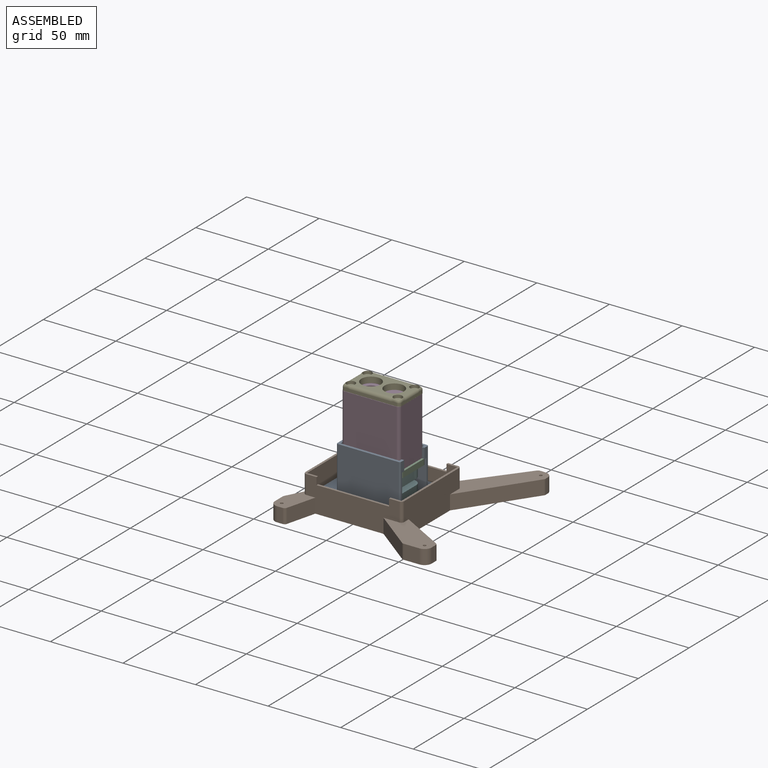
[diagram: assembled view]
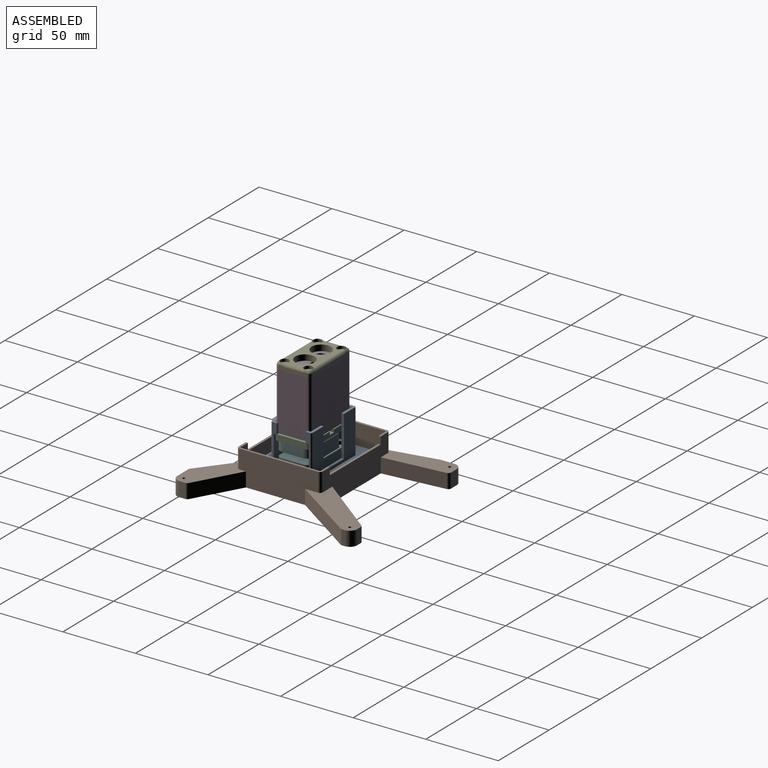
[diagram: assembled view, second angle]
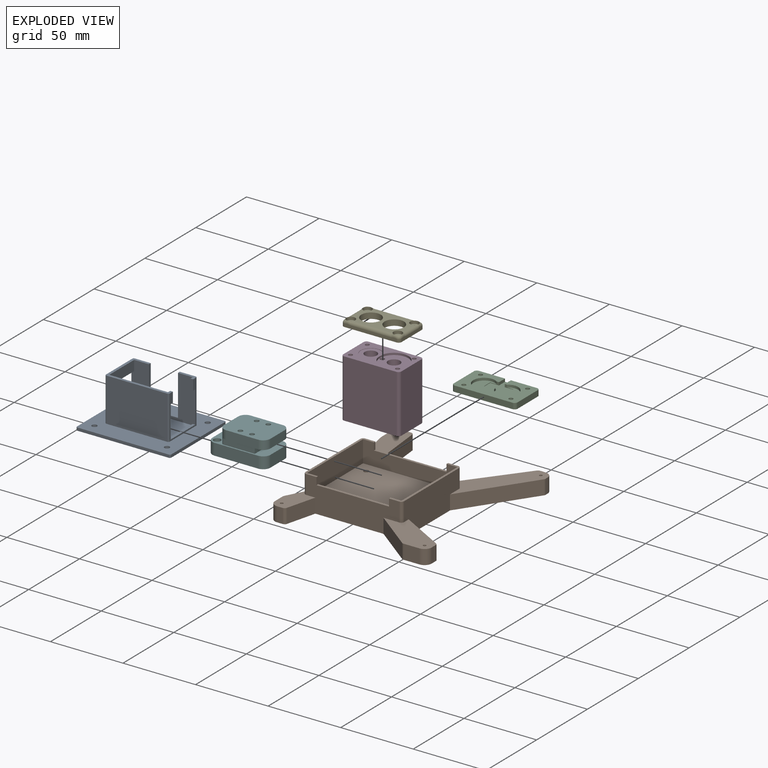
[diagram: exploded view]
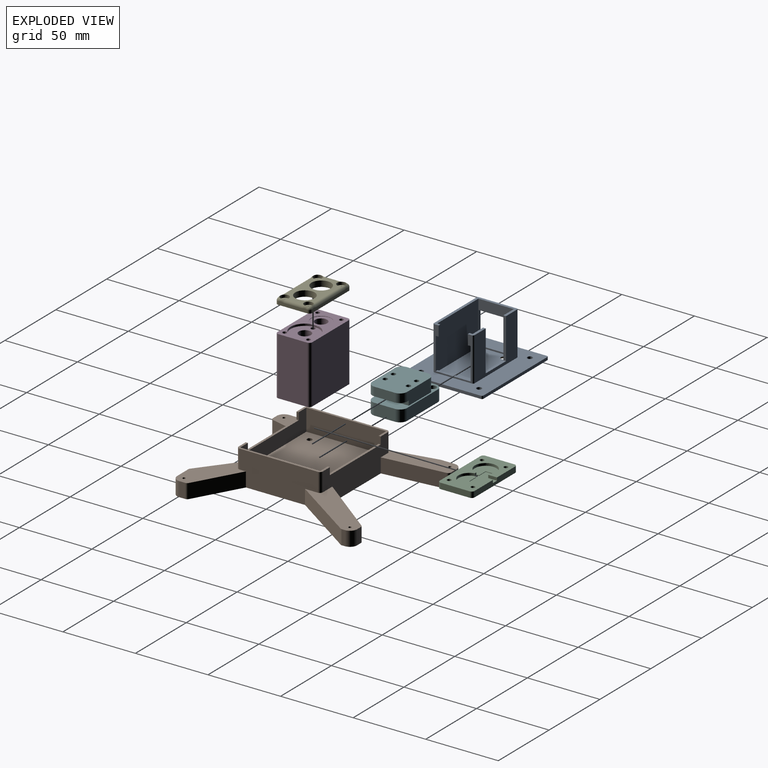
[diagram: exploded view, second angle]
FCSTD DOCUMENT  (FreeCAD 1.0R39319 (Git))
Label: BoltTaskAssembly_TypeB_V1
License: All rights reserved
LicenseURL: https://en.wikipedia.org/wiki/All_rights_reserved
objects: Sketcher::SketchObject×41, PartDesign::Hole×16, PartDesign::Fillet×14, PartDesign::Pocket×13, PartDesign::Pad×12, PartDesign::Mirrored×12, PartDesign::Body×7, App::Link×6, Assembly::JointGroup×1, Part::FeaturePython×1, Assembly::AssemblyObject×1
note: 279 computed .brp shape members not serialized (recipe doc carries the construction recipe); baked Part::Feature solids carry a one-line shape summary decoded from their .brp

FEATURE [Sketcher::SketchObject] Sketch
  ArcFitTolerance = 1e-06
  AttachmentSupport = -> [XY_Plane]
  FullyConstrained = true
  MakeInternals = false
  MapMode = 5
  sketch-geometry (4):
    g0: LineSegment StartX=-12 StartY=16 StartZ=0 EndX=-12 EndY=-16 EndZ=0
    g1: LineSegment StartX=-12 StartY=-16 StartZ=0 EndX=12 EndY=-16 EndZ=0
    g2: LineSegment StartX=12 StartY=-16 StartZ=0 EndX=12 EndY=16 EndZ=0
    g3: LineSegment StartX=12 StartY=16 StartZ=0 EndX=-12 EndY=16 EndZ=0
  constraints (12):
    c: Coincident(g0,g1)
    c: Coincident(g1,g2)
    c: Coincident(g2,g3)
    c: Coincident(g3,g0)
    c: Vertical(g0)
    c: Vertical(g2)
    c: Horizontal(g1)
    c: Horizontal(g3)
    c: Distance(g0,g2) = 24
    c: Distance(g1,g3) = 32
    c: Distance(g-1,g3) = 16
    c: Distance(g-1,g0) = 12
FEATURE [PartDesign::Pad] Pad
  Direction = (0,0,1)
  Length = 8
  Length2 = 10
  Midplane = true
  Profile = -> Sketch
  ReferenceAxis = -> Sketch [N_Axis]
  Refine = true
  Suppressed = false
  Type = 0
FEATURE [PartDesign::Fillet] Fillet
  Base = -> Pad [Edge2,Edge5,Edge8,Edge1]
  BaseFeature = -> Pad
  Radius = 4
  Refine = true
  SupportTransform = false
  Suppressed = false
  UseAllEdges = false
FEATURE [Sketcher::SketchObject] Sketch001
  ArcFitTolerance = 1e-06
  AttachmentSupport = -> [Fillet]
  FullyConstrained = true
  MakeInternals = false
  MapMode = 5
  Placement = pos=(0,0,4) rot=(0,0,1;0rad)
  sketch-geometry (1):
    g0: Circle CenterX=-8 CenterY=-4 CenterZ=0 NormalX=0 NormalY=0 NormalZ=1 AngleXU=0 Radius=2.5
  constraints (3):
    c: Diameter(g0) = 5
    c: DistanceY(g0,g-1) = 4
    c: DistanceX(g0,g-1) = 8
FEATURE [PartDesign::Hole] Hole
  BaseFeature = -> Fillet
  CustomThreadClearance = 0
  Depth = 25
  DepthType = 0
  Diameter = 5
  DrillForDepth = false
  DrillPoint = 1
  DrillPointAngle = 118
  HoleCutCountersinkAngle = 90
  HoleCutCustomValues = false
  HoleCutDepth = 0
  HoleCutDiameter = 6.1
  HoleCutType = 0
  ModelThread = false
  Profile = -> Sketch001
  Refine = true
  Suppressed = false
  Tapered = false
  TaperedAngle = 90
  ThreadClass = 0
  ThreadDepth = 25
  ThreadDepthType = 0
  ThreadDirection = 0
  ThreadFit = 0
  ThreadSize = 0
  ThreadType = 0
  Threaded = false
  UseCustomThreadClearance = false
FEATURE [PartDesign::Mirrored] Mirrored
  BaseFeature = -> Hole
  MirrorPlane = -> Sketch001 [V_Axis]
  Originals = -> [Hole]
  Refine = true
  Suppressed = false
  TransformMode = 0
FEATURE [Sketcher::SketchObject] Sketch002
  ArcFitTolerance = 1e-06
  AttachmentSupport = -> [Mirrored]
  FullyConstrained = true
  MakeInternals = false
  MapMode = 5
  Placement = pos=(0,0,4) rot=(0,0,1;0rad)
  sketch-geometry (4):
    g0: LineSegment StartX=-7 StartY=10 StartZ=0 EndX=7 EndY=10 EndZ=0
    g1: LineSegment StartX=7 StartY=10 StartZ=0 EndX=7 EndY=16 EndZ=0
    g2: LineSegment StartX=7 StartY=16 StartZ=0 EndX=-7 EndY=16 EndZ=0
    g3: LineSegment StartX=-7 StartY=16 StartZ=0 EndX=-7 EndY=10 EndZ=0
  constraints (12):
    c: Coincident(g0,g1)
    c: Coincident(g1,g2)
    c: Coincident(g2,g3)
    c: Coincident(g3,g0)
    c: Horizontal(g0)
    c: Horizontal(g2)
    c: Vertical(g1)
    c: Vertical(g3)
    c: Distance(g1,g3) = 14
    c: Distance(g0,g2) = 6
    c: Distance(g-2,g3) = 7
    c: Distance(g-1,g2) = 16
FEATURE [PartDesign::Pocket] Pocket
  BaseFeature = -> Mirrored
  Direction = (0,0,-1)
  Length = 5.2
  Length2 = 5
  Profile = -> Sketch002
  ReferenceAxis = -> Sketch002 [N_Axis]
  Refine = true
  Suppressed = false
  Type = 0
FEATURE [Sketcher::SketchObject] Sketch003
  ArcFitTolerance = 1e-06
  AttachmentSupport = -> [Pocket]
  FullyConstrained = true
  MakeInternals = false
  MapMode = 5
  Placement = pos=(0,0,-1.2) rot=(0,0,1;0rad)
  sketch-geometry (8):
    g0: LineSegment StartX=7 StartY=10 StartZ=0 EndX=-7 EndY=10 EndZ=0
    g1: LineSegment StartX=-7 StartY=10 StartZ=0 EndX=-7 EndY=19.5 EndZ=0
    g2: LineSegment StartX=-7 StartY=19.5 StartZ=0 EndX=-3 EndY=19.5 EndZ=0
    g3: LineSegment StartX=-3 StartY=19.5 StartZ=0 EndX=-3 EndY=12 EndZ=0
    g4: LineSegment StartX=-3 StartY=12 StartZ=0 EndX=3 EndY=12 EndZ=0
    g5: LineSegment StartX=3 StartY=12 StartZ=0 EndX=3 EndY=19.5 EndZ=0
    g6: LineSegment StartX=3 StartY=19.5 StartZ=0 EndX=7 EndY=19.5 EndZ=0
    g7: LineSegment StartX=7 StartY=19.5 StartZ=0 EndX=7 EndY=10 EndZ=0
  constraints (24):
    c: Horizontal(g0)
    c: Coincident(g0,g1)
    c: Vertical(g1)
    c: Coincident(g1,g2)
    c: Horizontal(g2)
    c: Coincident(g2,g3)
    c: Vertical(g3)
    c: Coincident(g3,g4)
    c: Horizontal(g4)
    c: Coincident(g4,g5)
    c: Vertical(g5)
    c: Coincident(g5,g6)
    c: Horizontal(g6)
    c: Coincident(g6,g7)
    c: Coincident(g7,g0)
    c: Vertical(g7)
    c: Distance(g3,g1) = 4
    c: Distance(g7,g5) = 4
    c: Distance(g7,g1) = 14
    c: Distance(g-2,g1) = 7
    c: Distance(g0,g4) = 2
    c: Distance(g0,g6) = 9.5
    c: Distance(g-1,g0) = 10
    c: Distance(g0,g2) = 9.5
FEATURE [PartDesign::Pad] Pad001
  BaseFeature = -> Pocket
  Direction = (0,0,1)
  Length = 6
  Length2 = 10
  Profile = -> Sketch003
  ReferenceAxis = -> Sketch003 [N_Axis]
  Refine = true
  Suppressed = false
  Type = 0
FEATURE [Assembly::JointGroup] Joints
FEATURE [PartDesign::Fillet] Fillet001
  Base = -> Pad001 [Edge8,Edge10,Edge11,Edge9,Edge6,Edge1,Edge5,Edge7]
  BaseFeature = -> Pad001
  Radius = 1
  Refine = true
  SupportTransform = false
  Suppressed = false
  UseAllEdges = false
FEATURE [PartDesign::Fillet] Fillet002
  Base = -> Fillet001 [Edge20,Edge3,Edge6,Edge16,Edge17,Edge18,Edge19,Edge11,Edge15]
  BaseFeature = -> Fillet001
  Radius = 1
  Refine = true
  SupportTransform = false
  Suppressed = false
  UseAllEdges = false
FEATURE [PartDesign::Body] Body  label="UnitOP180"
  AllowCompound = false
  Group = -> [Sketch,Pad,Fillet,Sketch001,Hole,Mirrored,Sketch002,Pocket,Sketch003,Pad001,Fillet001,Fillet002]
  Origin = -> Origin
  Tip = -> Fillet002
FEATURE [Sketcher::SketchObject] Sketch005
  ArcFitTolerance = 1e-06
  AttachmentSupport = -> [XY_Plane003]
  FullyConstrained = true
  MakeInternals = false
  MapMode = 5
  sketch-geometry (4):
    g0: LineSegment StartX=-12 StartY=20 StartZ=0 EndX=-12 EndY=-20 EndZ=0
    g1: LineSegment StartX=-12 StartY=-20 StartZ=0 EndX=12 EndY=-20 EndZ=0
    g2: LineSegment StartX=12 StartY=-20 StartZ=0 EndX=12 EndY=20 EndZ=0
    g3: LineSegment StartX=12 StartY=20 StartZ=0 EndX=-12 EndY=20 EndZ=0
  constraints (12):
    c: Coincident(g0,g1)
    c: Coincident(g1,g2)
    c: Coincident(g2,g3)
    c: Coincident(g3,g0)
    c: Vertical(g0)
    c: Vertical(g2)
    c: Horizontal(g1)
    c: Horizontal(g3)
    c: Distance(g0,g2) = 24
    c: Distance(g1,g3) = 40
    c: Distance(g0,g-2) = 12
    c: Distance(g1,g-1) = 20
FEATURE [PartDesign::Pad] Pad002
  Direction = (0,0,1)
  Length = 8
  Length2 = 10
  Profile = -> Sketch005
  ReferenceAxis = -> Sketch005 [N_Axis]
  Refine = true
  Suppressed = false
  Type = 0
FEATURE [App::Link] UnitMiniScale  label="UnitMiniScale001"
  LinkPlacement = pos=(2.67228,-0.851681,6.50379) rot=(0,0,1;1.5708rad)
  LinkedObject = -> Body002
  Placement = pos=(2.67228,-0.851681,6.50379) rot=(0,0,1;1.5708rad)
FEATURE [Sketcher::SketchObject] Sketch026
  ArcFitTolerance = 1e-06
  AttachmentSupport = -> [Pad002]
  ExternalGeometry = -> [Pad002]
  FullyConstrained = true
  MakeInternals = false
  MapMode = 5
  Placement = pos=(0,0,8) rot=(0,0,1;0rad)
  sketch-geometry (4):
    g0: LineSegment StartX=-11 StartY=12 StartZ=0 EndX=-11 EndY=-12 EndZ=0
    g1: LineSegment StartX=-11 StartY=-12 StartZ=0 EndX=11 EndY=-12 EndZ=0
    g2: LineSegment StartX=11 StartY=-12 StartZ=0 EndX=11 EndY=12 EndZ=0
    g3: LineSegment StartX=11 StartY=12 StartZ=0 EndX=-11 EndY=12 EndZ=0
  constraints (12):
    c: Coincident(g0,g1)
    c: Coincident(g1,g2)
    c: Coincident(g2,g3)
    c: Coincident(g3,g0)
    c: Vertical(g0)
    c: Vertical(g2)
    c: Horizontal(g1)
    c: Horizontal(g3)
    c: Distance(g3,g-4) = 8
    c: Distance(g-6,g1) = 8
    c: Distance(g-3,g2) = 1
    c: Distance(g0,g-5) = 1
FEATURE [PartDesign::Pad] Pad008
  BaseFeature = -> Pad002
  Direction = (0,0,1)
  Length = 4
  Length2 = 10
  Profile = -> Sketch026
  ReferenceAxis = -> Sketch026 [N_Axis]
  Refine = true
  Suppressed = false
  Type = 0
FEATURE [Sketcher::SketchObject] Sketch027
  ArcFitTolerance = 1e-06
  AttachmentSupport = -> [Pad008]
  ExternalGeometry = -> [Pad008]
  FullyConstrained = true
  MakeInternals = false
  MapMode = 5
  Placement = pos=(0,0,8) rot=(0,0,1;0rad)
  sketch-geometry (1):
    g0: Circle CenterX=-8 CenterY=16 CenterZ=0 NormalX=0 NormalY=0 NormalZ=1 AngleXU=0 Radius=2.425
  constraints (3):
    c: Diameter(g0) = 4.85
    c: Distance(g0,g-3) = 4
    c: Distance(g0,g-6) = 4
FEATURE [PartDesign::Hole] Hole010
  BaseFeature = -> Pad008
  CustomThreadClearance = 0
  Depth = 25
  DepthType = 0
  Diameter = 4.85
  DrillForDepth = false
  DrillPoint = 1
  DrillPointAngle = 118
  HoleCutCountersinkAngle = 90
  HoleCutCustomValues = false
  HoleCutDepth = 0
  HoleCutDiameter = 6.1
  HoleCutType = 0
  ModelThread = false
  Profile = -> Sketch027
  Refine = true
  Suppressed = false
  Tapered = false
  TaperedAngle = 90
  ThreadClass = 0
  ThreadDepth = 25
  ThreadDepthType = 0
  ThreadDirection = 0
  ThreadFit = 0
  ThreadSize = 0
  ThreadType = 0
  Threaded = false
  UseCustomThreadClearance = false
FEATURE [PartDesign::Mirrored] Mirrored014
  BaseFeature = -> Hole010
  MirrorPlane = -> Sketch027 [V_Axis]
  Originals = -> [Hole010]
  Refine = true
  Suppressed = false
  TransformMode = 0
FEATURE [Sketcher::SketchObject] Sketch028
  ArcFitTolerance = 1e-06
  AttachmentSupport = -> [Mirrored014]
  FullyConstrained = true
  MakeInternals = false
  MapMode = 5
  Placement = pos=(0,0,12) rot=(0,0,1;0rad)
  sketch-geometry (4):
    g0: LineSegment StartX=-12 StartY=12 StartZ=0 EndX=-12 EndY=-20 EndZ=0
    g1: LineSegment StartX=-12 StartY=-20 StartZ=0 EndX=12 EndY=-20 EndZ=0
    g2: LineSegment StartX=12 StartY=-20 StartZ=0 EndX=12 EndY=12 EndZ=0
    g3: LineSegment StartX=12 StartY=12 StartZ=0 EndX=-12 EndY=12 EndZ=0
  constraints (12):
    c: Coincident(g0,g1)
    c: Coincident(g1,g2)
    c: Coincident(g2,g3)
    c: Coincident(g3,g0)
    c: Vertical(g0)
    c: Vertical(g2)
    c: Horizontal(g1)
    c: Horizontal(g3)
    c: Distance(g0,g2) = 24
    c: Distance(g1,g3) = 32
    c: Distance(g-2,g0) = 12
    c: Distance(g1,g-1) = 20
FEATURE [PartDesign::Pad] Pad009
  BaseFeature = -> Mirrored014
  Direction = (0,0,1)
  Length = 6
  Length2 = 10
  Profile = -> Sketch028
  ReferenceAxis = -> Sketch028 [N_Axis]
  Refine = true
  Suppressed = false
  Type = 0
FEATURE [Sketcher::SketchObject] Sketch029
  ArcFitTolerance = 1e-06
  AttachmentSupport = -> [Pad009]
  ExternalGeometry = -> [Pad009]
  FullyConstrained = true
  MakeInternals = false
  MapMode = 5
  Placement = pos=(0,0,18) rot=(0,0,1;0rad)
  sketch-geometry (2):
    g0: Circle CenterX=-8 CenterY=4e-16 CenterZ=0 NormalX=0 NormalY=0 NormalZ=1 AngleXU=0 Radius=1.6
    g1: Circle CenterX=-8 CenterY=-8 CenterZ=0 NormalX=0 NormalY=0 NormalZ=1 AngleXU=0 Radius=1.6
  constraints (6):
    c: Diameter(g0) = 3.2
    c: Distance(g0,g-2) = 8
    c: Distance(g0,g-3) = 20
    c: Diameter(g1) = 3.2
    c: Distance(g1,g-2) = 8
    c: Distance(g1,g-3) = 12
FEATURE [PartDesign::Hole] Hole011
  BaseFeature = -> Pad009
  CustomThreadClearance = 0
  Depth = 5
  DepthType = 0
  Diameter = 3.2
  DrillForDepth = false
  DrillPoint = 1
  DrillPointAngle = 118
  HoleCutCountersinkAngle = 90
  HoleCutCustomValues = false
  HoleCutDepth = 0
  HoleCutDiameter = 6.1
  HoleCutType = 0
  ModelThread = false
  Profile = -> Sketch029
  Refine = true
  Suppressed = false
  Tapered = false
  TaperedAngle = 90
  ThreadClass = 0
  ThreadDepth = 5
  ThreadDepthType = 0
  ThreadDirection = 0
  ThreadFit = 0
  ThreadSize = 0
  ThreadType = 0
  Threaded = false
  UseCustomThreadClearance = false
FEATURE [PartDesign::Mirrored] Mirrored015
  BaseFeature = -> Hole011
  MirrorPlane = -> Sketch029 [V_Axis]
  Originals = -> [Hole011]
  Refine = true
  Suppressed = false
  TransformMode = 0
FEATURE [PartDesign::Fillet] Fillet012
  Base = -> Mirrored015 [Edge1,Edge2,Edge8,Edge5]
  BaseFeature = -> Mirrored015
  Radius = 5
  Refine = true
  SupportTransform = false
  Suppressed = false
  UseAllEdges = false
FEATURE [PartDesign::Fillet] Fillet013
  Base = -> Fillet012 [Edge50,Edge58,Edge42,Edge40]
  BaseFeature = -> Fillet012
  Radius = 5
  Refine = true
  SupportTransform = false
  Suppressed = false
  UseAllEdges = false
FEATURE [PartDesign::Body] Body002  label="UnitMiniScale"
  AllowCompound = false
  Group = -> [Sketch005,Pad002,Sketch026,Pad008,Sketch027,Hole010,Mirrored014,Sketch028,Pad009,Sketch029,Hole011,Mirrored015,Fillet012,Fillet013]
  Origin = -> Origin003
  Tip = -> Fillet013
FEATURE [Sketcher::SketchObject] Sketch031
  ArcFitTolerance = 1e-06
  AttachmentSupport = -> [XY_Plane006]
  FullyConstrained = true
  MakeInternals = false
  MapMode = 5
  sketch-geometry (4):
    g0: LineSegment StartX=-54 StartY=62 StartZ=0 EndX=-54 EndY=-62 EndZ=0
    g1: LineSegment StartX=-54 StartY=-62 StartZ=0 EndX=54 EndY=-62 EndZ=0
    g2: LineSegment StartX=54 StartY=-62 StartZ=0 EndX=54 EndY=62 EndZ=0
    g3: LineSegment StartX=54 StartY=62 StartZ=0 EndX=-54 EndY=62 EndZ=0
  constraints (12):
    c: Coincident(g0,g1)
    c: Coincident(g1,g2)
    c: Coincident(g2,g3)
    c: Coincident(g3,g0)
    c: Vertical(g0)
    c: Vertical(g2)
    c: Horizontal(g1)
    c: Horizontal(g3)
    c: Distance(g0,g2) = 108
    c: Distance(g1,g3) = 124
    c: Distance(g2,g-2) = 54
    c: Distance(g1,g-1) = 62
FEATURE [PartDesign::Pad] Pad010
  Direction = (0,0,1)
  Length = 10
  Length2 = 10
  Profile = -> Sketch031
  ReferenceAxis = -> Sketch031 [N_Axis]
  Refine = true
  Suppressed = false
  Type = 0
FEATURE [Sketcher::SketchObject] Sketch032
  ArcFitTolerance = 1e-06
  AttachmentSupport = -> [Pad010]
  FullyConstrained = true
  MakeInternals = false
  MapMode = 5
  Placement = pos=(0,0,0) rot=(1,0,0;3.14159rad)
  sketch-geometry (2):
    g0: Circle CenterX=49.21 CenterY=57.15 CenterZ=0 NormalX=0 NormalY=0 NormalZ=1 AngleXU=0 Radius=3.26
    g1: Circle CenterX=49.21 CenterY=-57.15 CenterZ=0 NormalX=0 NormalY=0 NormalZ=1 AngleXU=0 Radius=3.26
  constraints (6):
    c: Diameter(g0) = 6.52
    c: Distance(g0,g-2) = 49.21
    c: Distance(g0,g-1) = 57.15
    c: Diameter(g1) = 6.52
    c: Distance(g1,g-1) = 57.15
    c: Distance(g1,g-2) = 49.21
FEATURE [PartDesign::Hole] Hole012
  BaseFeature = -> Pad010
  CustomThreadClearance = 0
  Depth = 7
  DepthType = 0
  Diameter = 6.52
  DrillForDepth = false
  DrillPoint = 1
  DrillPointAngle = 118
  HoleCutCountersinkAngle = 90
  HoleCutCustomValues = false
  HoleCutDepth = 0
  HoleCutDiameter = 0
  HoleCutType = 0
  ModelThread = false
  Profile = -> Sketch032
  Refine = true
  Suppressed = false
  Tapered = false
  TaperedAngle = 90
  ThreadClass = 0
  ThreadDepth = 7
  ThreadDepthType = 0
  ThreadDirection = 0
  ThreadFit = 0
  ThreadSize = 0
  ThreadType = 0
  Threaded = false
  UseCustomThreadClearance = false
FEATURE [PartDesign::Mirrored] Mirrored016
  BaseFeature = -> Hole012
  MirrorPlane = -> Sketch032 [V_Axis]
  Originals = -> [Hole012]
  Refine = true
  Suppressed = false
  TransformMode = 0
FEATURE [Sketcher::SketchObject] Sketch033
  ArcFitTolerance = 1e-06
  AttachmentSupport = -> [Mirrored016]
  FullyConstrained = true
  MakeInternals = false
  MapMode = 5
  Placement = pos=(0,0,10) rot=(0,0,1;0rad)
  sketch-geometry (2):
    g0: Circle CenterX=49.21 CenterY=57.15 CenterZ=0 NormalX=0 NormalY=0 NormalZ=1 AngleXU=0 Radius=1
    g1: Circle CenterX=49.21 CenterY=-57.15 CenterZ=0 NormalX=0 NormalY=0 NormalZ=1 AngleXU=0 Radius=1
  constraints (6):
    c: Diameter(g0) = 2
    c: Distance(g0,g-1) = 57.15
    c: Distance(g0,g-2) = 49.21
    c: Diameter(g1) = 2
    c: Distance(g1,g-2) = 49.21
    c: Distance(g1,g-1) = 57.15
FEATURE [PartDesign::Hole] Hole013
  BaseFeature = -> Mirrored016
  CustomThreadClearance = 0
  Depth = 25
  DepthType = 0
  Diameter = 2
  DrillForDepth = false
  DrillPoint = 1
  DrillPointAngle = 118
  HoleCutCountersinkAngle = 90
  HoleCutCustomValues = false
  HoleCutDepth = 0
  HoleCutDiameter = 6.1
  HoleCutType = 0
  ModelThread = false
  Profile = -> Sketch033
  Refine = true
  Suppressed = false
  Tapered = false
  TaperedAngle = 90
  ThreadClass = 0
  ThreadDepth = 25
  ThreadDepthType = 0
  ThreadDirection = 0
  ThreadFit = 0
  ThreadSize = 0
  ThreadType = 0
  Threaded = false
  UseCustomThreadClearance = false
FEATURE [PartDesign::Mirrored] Mirrored017
  BaseFeature = -> Hole013
  MirrorPlane = -> Sketch033 [V_Axis]
  Originals = -> [Hole013]
  Refine = true
  Suppressed = false
  TransformMode = 0
FEATURE [Sketcher::SketchObject] Sketch034
  ArcFitTolerance = 1e-06
  AttachmentSupport = -> [Mirrored017]
  ExternalGeometry = -> [Mirrored017]
  FullyConstrained = true
  MakeInternals = false
  MapMode = 5
  Placement = pos=(0,0,10) rot=(0,0,1;0rad)
  sketch-geometry (4):
    g0: LineSegment StartX=-46.21 StartY=17.85 StartZ=0 EndX=-46.21 EndY=-40.15 EndZ=0
    g1: LineSegment StartX=-46.21 StartY=-40.15 StartZ=0 EndX=21.79 EndY=-40.15 EndZ=0
    g2: LineSegment StartX=21.79 StartY=-40.15 StartZ=0 EndX=21.79 EndY=17.85 EndZ=0
    g3: LineSegment StartX=21.79 StartY=17.85 StartZ=0 EndX=-46.21 EndY=17.85 EndZ=0
  constraints (12):
    c: Coincident(g0,g1)
    c: Coincident(g1,g2)
    c: Coincident(g2,g3)
    c: Coincident(g3,g0)
    c: Vertical(g0)
    c: Vertical(g2)
    c: Horizontal(g1)
    c: Horizontal(g3)
    c: Distance(g0,g2) = 68
    c: Distance(g1,g3) = 58
    c: Distance(g-3,g1) = 17
    c: Distance(g-3,g0) = 3
FEATURE [PartDesign::Pad] Pad011
  BaseFeature = -> Mirrored017
  Direction = (0,0,1)
  Length = 13
  Length2 = 10
  Profile = -> Sketch034
  ReferenceAxis = -> Sketch034 [N_Axis]
  Refine = true
  Suppressed = false
  Type = 0
FEATURE [Sketcher::SketchObject] Sketch035
  ArcFitTolerance = 1e-06
  AttachmentSupport = -> [Pad011]
  ExternalGeometry = -> [Pad011]
  FullyConstrained = true
  MakeInternals = false
  MapMode = 5
  Placement = pos=(0,0,23) rot=(0,0,1;0rad)
  sketch-geometry (4):
    g0: LineSegment StartX=-44.71 StartY=16.35 StartZ=0 EndX=-44.71 EndY=-38.65 EndZ=0
    g1: LineSegment StartX=-44.71 StartY=-38.65 StartZ=0 EndX=20.29 EndY=-38.65 EndZ=0
    g2: LineSegment StartX=20.29 StartY=-38.65 StartZ=0 EndX=20.29 EndY=16.35 EndZ=0
    g3: LineSegment StartX=20.29 StartY=16.35 StartZ=0 EndX=-44.71 EndY=16.35 EndZ=0
  constraints (12):
    c: Coincident(g0,g1)
    c: Coincident(g1,g2)
    c: Coincident(g2,g3)
    c: Coincident(g3,g0)
    c: Vertical(g0)
    c: Vertical(g2)
    c: Horizontal(g1)
    c: Horizontal(g3)
    c: Distance(g0,g2) = 65
    c: Distance(g1,g3) = 55
    c: Distance(g-3,g2) = 1.5
    c: Distance(g-4,g1) = 1.5
FEATURE [PartDesign::Pocket] Pocket009
  BaseFeature = -> Pad011
  Direction = (0,0,-1)
  Length = 5
  Length2 = 5
  Profile = -> Sketch035
  ReferenceAxis = -> Sketch035 [N_Axis]
  Refine = true
  Suppressed = false
  Type = 0
FEATURE [Sketcher::SketchObject] Sketch037
  ArcFitTolerance = 1e-06
  AttachmentSupport = -> [Pocket009]
  ExternalGeometry = -> [Pocket009]
  FullyConstrained = true
  MakeInternals = false
  MapMode = 5
  Placement = pos=(0,0,18) rot=(0,0,1;0rad)
  sketch-geometry (4):
    g0: Circle CenterX=-37.21 CenterY=8.85 CenterZ=0 NormalX=0 NormalY=0 NormalZ=1 AngleXU=0 Radius=1.75
    g1: Circle CenterX=-37.21 CenterY=-31.15 CenterZ=0 NormalX=0 NormalY=0 NormalZ=1 AngleXU=0 Radius=1.75
    g2: Circle CenterX=12.79 CenterY=8.85 CenterZ=0 NormalX=0 NormalY=0 NormalZ=1 AngleXU=0 Radius=1.75
    g3: Circle CenterX=12.79 CenterY=-31.15 CenterZ=0 NormalX=0 NormalY=0 NormalZ=1 AngleXU=0 Radius=1.75
  constraints (12):
    c: Diameter(g0) = 3.5
    c: Distance(g0,g-4) = 7.5
    c: Distance(g0,g-3) = 7.5
    c: Diameter(g1) = 3.5
    c: Distance(g1,g-3) = 7.5
    c: Distance(g1,g-5) = 7.5
    c: Diameter(g2) = 3.5
    c: Distance(g2,g-4) = 7.5
    c: Distance(g2,g-6) = 7.5
    c: Diameter(g3) = 3.5
    c: Distance(g3,g-6) = 7.5
    c: Distance(g3,g-5) = 7.5
FEATURE [PartDesign::Hole] Hole015
  BaseFeature = -> Pocket009
  CustomThreadClearance = 0
  Depth = 25
  DepthType = 0
  Diameter = 3.5
  DrillForDepth = false
  DrillPoint = 1
  DrillPointAngle = 118
  HoleCutCountersinkAngle = 90
  HoleCutCustomValues = false
  HoleCutDepth = 0
  HoleCutDiameter = 6.1
  HoleCutType = 0
  ModelThread = false
  Profile = -> Sketch037
  Refine = true
  Suppressed = false
  Tapered = false
  TaperedAngle = 90
  ThreadClass = 0
  ThreadDepth = 25
  ThreadDepthType = 0
  ThreadDirection = 0
  ThreadFit = 0
  ThreadSize = 0
  ThreadType = 0
  Threaded = false
  UseCustomThreadClearance = false
FEATURE [App::Link] BaseBracket  label="BaseBracket001"
  LinkPlacement = pos=(15.8092,11.1269,-1.81562) rot=(0,0,1;0rad)
  LinkedObject = -> Body005
  Placement = pos=(15.8092,11.1269,-1.81562) rot=(0,0,1;0rad)
FEATURE [Sketcher::SketchObject] Sketch038
  ArcFitTolerance = 1e-06
  AttachmentSupport = -> [Hole015]
  ExternalGeometry = -> [Hole015]
  FullyConstrained = true
  MakeInternals = false
  MapMode = 5
  Placement = pos=(0,0,23) rot=(0,0,1;0rad)
  sketch-geometry (4):
    g0: LineSegment StartX=-37.21 StartY=17.85 StartZ=0 EndX=-37.21 EndY=-40.15 EndZ=0
    g1: LineSegment StartX=-37.21 StartY=-40.15 StartZ=0 EndX=12.79 EndY=-40.15 EndZ=0
    g2: LineSegment StartX=12.79 StartY=-40.15 StartZ=0 EndX=12.79 EndY=17.85 EndZ=0
    g3: LineSegment StartX=12.79 StartY=17.85 StartZ=0 EndX=-37.21 EndY=17.85 EndZ=0
  constraints (12):
    c: Coincident(g0,g1)
    c: Coincident(g1,g2)
    c: Coincident(g2,g3)
    c: Coincident(g3,g0)
    c: Vertical(g0)
    c: Vertical(g2)
    c: Horizontal(g1)
    c: Horizontal(g3)
    c: PointOnObject(g0,g-3)
    c: PointOnObject(g1,g-6)
    c: Distance(g-4,g0) = 9
    c: Distance(g-5,g2) = 9
FEATURE [PartDesign::Pocket] Pocket010
  BaseFeature = -> Hole015
  Direction = (0,0,-1)
  Length = 5
  Length2 = 5
  Profile = -> Sketch038
  ReferenceAxis = -> Sketch038 [N_Axis]
  Refine = true
  Suppressed = false
  Type = 0
FEATURE [Sketcher::SketchObject] Sketch039
  ArcFitTolerance = 1e-06
  AttachmentSupport = -> [Pocket010]
  ExternalGeometry = -> [Pocket010]
  FullyConstrained = true
  MakeInternals = false
  MapMode = 5
  Placement = pos=(0,0,0) rot=(1,0,0;3.14159rad)
  sketch-geometry (4):
    g0: Circle CenterX=-37.21 CenterY=31.15 CenterZ=0 NormalX=0 NormalY=0 NormalZ=1 AngleXU=0 Radius=4
    g1: Circle CenterX=12.79 CenterY=31.15 CenterZ=0 NormalX=0 NormalY=0 NormalZ=1 AngleXU=0 Radius=4
    g2: Circle CenterX=12.79 CenterY=-8.85 CenterZ=0 NormalX=0 NormalY=0 NormalZ=1 AngleXU=0 Radius=4
    g3: Circle CenterX=-37.21 CenterY=-8.85 CenterZ=0 NormalX=0 NormalY=0 NormalZ=1 AngleXU=0 Radius=4
  constraints (8):
    c: Diameter(g0) = 8
    c: Coincident(g0,g-3)
    c: Diameter(g1) = 8
    c: Coincident(g1,g-4)
    c: Diameter(g2) = 8
    c: Coincident(g2,g-5)
    c: Diameter(g3) = 8
    c: Coincident(g3,g-6)
FEATURE [PartDesign::Hole] Hole016
  BaseFeature = -> Pocket010
  CustomThreadClearance = 0
  Depth = 25
  DepthType = 0
  Diameter = 3.5
  DrillForDepth = false
  DrillPoint = 1
  DrillPointAngle = 118
  HoleCutCountersinkAngle = 90
  HoleCutCustomValues = false
  HoleCutDepth = 2
  HoleCutDiameter = 12
  HoleCutType = 2
  ModelThread = false
  Profile = -> Sketch039
  Refine = true
  Suppressed = false
  Tapered = false
  TaperedAngle = 90
  ThreadClass = 0
  ThreadDepth = 25
  ThreadDepthType = 0
  ThreadDirection = 0
  ThreadFit = 0
  ThreadSize = 0
  ThreadType = 0
  Threaded = false
  UseCustomThreadClearance = false
FEATURE [Sketcher::SketchObject] Sketch040
  ArcFitTolerance = 1e-06
  AttachmentSupport = -> [Hole016]
  ExternalGeometry = -> [Hole016]
  FullyConstrained = true
  MakeInternals = false
  MapMode = 5
  Placement = pos=(0,0,10) rot=(0,0,1;0rad)
  sketch-geometry (16):
    g0: LineSegment StartX=-43.6545 StartY=-62 StartZ=0 EndX=-38.02 EndY=-40.15 EndZ=0
    g1: LineSegment StartX=-38.02 StartY=-40.15 StartZ=0 EndX=9 EndY=-40.15 EndZ=0
    g2: LineSegment StartX=9 StartY=-40.15 StartZ=0 EndX=37.3626 EndY=-62 EndZ=0
    g3: LineSegment StartX=37.3626 StartY=-62 StartZ=0 EndX=-43.6545 EndY=-62 EndZ=0
    g4: LineSegment StartX=54 StartY=-51.79 StartZ=0 EndX=21.79 EndY=-33.72 EndZ=0
    g5: LineSegment StartX=21.79 StartY=-33.72 StartZ=0 EndX=21.79 EndY=7 EndZ=0
    g6: LineSegment StartX=21.79 StartY=7 StartZ=0 EndX=54 EndY=54.39 EndZ=0
    g7: LineSegment StartX=54 StartY=54.39 StartZ=0 EndX=54 EndY=-51.79 EndZ=0
    g8: LineSegment StartX=44.26 StartY=62 StartZ=0 EndX=10.41 EndY=17.85 EndZ=0
    g9: LineSegment StartX=10.41 StartY=17.85 StartZ=0 EndX=-37.26 EndY=17.85 EndZ=0
    g10: LineSegment StartX=-37.26 StartY=17.85 StartZ=0 EndX=-41.7 EndY=62 EndZ=0
    g11: LineSegment StartX=-41.7 StartY=62 StartZ=0 EndX=44.26 EndY=62 EndZ=0
    g12: LineSegment StartX=-54 StartY=47.54 StartZ=0 EndX=-46.21 EndY=8.27 EndZ=0
    g13: LineSegment StartX=-46.21 StartY=8.27 StartZ=0 EndX=-46.21 EndY=-34.1 EndZ=0
    g14: LineSegment StartX=-46.21 StartY=-34.1 StartZ=0 EndX=-54 EndY=-48.83 EndZ=0
    g15: LineSegment StartX=-54 StartY=-48.83 StartZ=0 EndX=-54 EndY=47.54 EndZ=0
  constraints (48):
    c: PointOnObject(g0,g-4)
    c: PointOnObject(g0,g-3)
    c: Coincident(g0,g1)
    c: PointOnObject(g1,g-3)
    c: Coincident(g1,g2)
    c: PointOnObject(g2,g-4)
    c: Coincident(g2,g3)
    c: Coincident(g3,g0)
    c: Angle(g0,g-6) = 0.252375
    c: Angle(g-5,g2) = 0.914378
    c: Distance(g0,g-6) = 15.98
    c: Distance(g1,g-5) = 45
    c: PointOnObject(g4,g-5)
    c: PointOnObject(g4,g-7)
    c: Coincident(g4,g5)
    c: PointOnObject(g5,g-7)
    c: Coincident(g5,g6)
    c: PointOnObject(g6,g-5)
    c: Coincident(g6,g7)
    c: Coincident(g7,g4)
    c: Distance(g4,g3) = 28.28
    c: Distance(g4,g-4) = 10.21
    c: Distance(g6,g-8) = 7.61
    c: Distance(g5,g-8) = 55
    c: PointOnObject(g8,g-8)
    c: PointOnObject(g8,g-9)
    c: Coincident(g8,g9)
    c: PointOnObject(g9,g-9)
    c: Coincident(g9,g10)
    c: PointOnObject(g10,g-8)
    c: Coincident(g10,g11)
    c: Coincident(g11,g8)
    c: Distance(g10,g-6) = 12.3
    c: Distance(g9,g-6) = 16.74
    c: Distance(g8,g7) = 43.59
    c: Distance(g8,g7) = 9.74
    c: PointOnObject(g12,g-6)
    c: PointOnObject(g12,g-10)
    c: Coincident(g12,g13)
    c: PointOnObject(g13,g-10)
    c: Coincident(g13,g14)
    c: PointOnObject(g14,g-6)
    c: Coincident(g14,g15)
    c: Coincident(g15,g12)
    c: Distance(g12,g-8) = 14.46
    c: Distance(g12,g-8) = 53.73
    c: Distance(g13,g3) = 27.9
    c: Distance(g14,g3) = 13.17
FEATURE [PartDesign::Pocket] Pocket011
  BaseFeature = -> Hole016
  Direction = (0,0,-1)
  Length = 11
  Length2 = 5
  Profile = -> Sketch040
  ReferenceAxis = -> Sketch040 [N_Axis]
  Refine = true
  Suppressed = false
  Type = 0
FEATURE [PartDesign::Fillet] Fillet014
  Base = -> Pocket011 [Edge92,Edge101,Edge42,Edge83]
  BaseFeature = -> Pocket011
  Radius = 5
  Refine = true
  SupportTransform = false
  Suppressed = false
  UseAllEdges = false
FEATURE [PartDesign::Fillet] Fillet015
  Base = -> Fillet014 [Edge57,Edge45,Edge70,Edge86,Edge98,Edge76,Edge65,Edge3]
  BaseFeature = -> Fillet014
  Radius = 2
  Refine = true
  SupportTransform = false
  Suppressed = false
  UseAllEdges = false
FEATURE [PartDesign::Fillet] Fillet016
  Base = -> Fillet015 [Edge64,Edge58,Edge74,Edge98]
  BaseFeature = -> Fillet015
  Radius = 2
  Refine = true
  SupportTransform = false
  Suppressed = false
  UseAllEdges = false
FEATURE [Part::FeaturePython] Screw023  label="M8x40-Screw"  # WARN: FeaturePython — macro-defined, semantics opaque (R4)
  Diameter = 4
  Invert = false
  LeftHanded = false
  Length = 6
  LengthCustom = 40
  MatchOuter = false
  OffsetAngle = 0
  Placement = pos=(-3.73635,-0.390078,73.61) rot=(0,0,1;0rad)
  Thread = false
  Type = 36
FEATURE [Sketcher::SketchObject] Sketch041
  ArcFitTolerance = 1e-06
  AttachmentSupport = -> [XY_Plane007]
  FullyConstrained = true
  MakeInternals = false
  MapMode = 5
  sketch-geometry (4):
    g0: LineSegment StartX=-20 StartY=12 StartZ=0 EndX=-20 EndY=-12 EndZ=0
    g1: LineSegment StartX=-20 StartY=-12 StartZ=0 EndX=20 EndY=-12 EndZ=0
    g2: LineSegment StartX=20 StartY=-12 StartZ=0 EndX=20 EndY=12 EndZ=0
    g3: LineSegment StartX=20 StartY=12 StartZ=0 EndX=-20 EndY=12 EndZ=0
  constraints (12):
    c: Coincident(g0,g1)
    c: Coincident(g1,g2)
    c: Coincident(g2,g3)
    c: Coincident(g3,g0)
    c: Vertical(g0)
    c: Vertical(g2)
    c: Horizontal(g1)
    c: Horizontal(g3)
    c: Distance(g0,g2) = 40
    c: Distance(g1,g3) = 24
    c: Distance(g0,g-2) = 20
    c: Distance(g-1,g3) = 12
FEATURE [PartDesign::Pad] Pad012
  Direction = (0,0,1)
  Length = 40
  Length2 = 10
  Profile = -> Sketch041
  ReferenceAxis = -> Sketch041 [N_Axis]
  Refine = true
  Suppressed = false
  Type = 0
FEATURE [Sketcher::SketchObject] Sketch042
  ArcFitTolerance = 1e-06
  AttachmentSupport = -> [Pad012]
  FullyConstrained = true
  MakeInternals = false
  MapMode = 5
  Placement = pos=(0,0,40) rot=(0,0,1;0rad)
  sketch-geometry (1):
    g0: Circle CenterX=8 CenterY=0 CenterZ=0 NormalX=0 NormalY=0 NormalZ=1 AngleXU=0 Radius=4.15
  constraints (3):
    c: Diameter(g0) = 8.3
    c: PointOnObject(g0,g-1)
    c: Distance(g0,g-1) = 8
FEATURE [PartDesign::Hole] Hole017
  BaseFeature = -> Pad012
  CustomThreadClearance = 0
  Depth = 50
  DepthType = 0
  Diameter = 8.3
  DrillForDepth = false
  DrillPoint = 1
  DrillPointAngle = 118
  HoleCutCountersinkAngle = 90
  HoleCutCustomValues = false
  HoleCutDepth = 0
  HoleCutDiameter = 6.1
  HoleCutType = 0
  ModelThread = false
  Profile = -> Sketch042
  Refine = true
  Suppressed = false
  Tapered = false
  TaperedAngle = 90
  ThreadClass = 0
  ThreadDepth = 50
  ThreadDepthType = 0
  ThreadDirection = 0
  ThreadFit = 0
  ThreadSize = 0
  ThreadType = 0
  Threaded = false
  UseCustomThreadClearance = false
FEATURE [PartDesign::Mirrored] Mirrored019
  BaseFeature = -> Hole017
  MirrorPlane = -> Sketch042 [V_Axis]
  Originals = -> [Hole017]
  Refine = true
  Suppressed = false
  TransformMode = 0
FEATURE [Sketcher::SketchObject] Sketch043
  ArcFitTolerance = 1e-06
  AttachmentSupport = -> [Mirrored019]
  ExternalGeometry = -> [Mirrored019]
  FullyConstrained = true
  MakeInternals = false
  MapMode = 5
  Placement = pos=(0,0,40) rot=(0,0,1;0rad)
  sketch-geometry (1):
    g0: Circle CenterX=8 CenterY=0 CenterZ=0 NormalX=0 NormalY=0 NormalZ=1 AngleXU=0 Radius=9.9
  constraints (2):
    c: Diameter(g0) = 19.8
    c: Coincident(g0,g-3)
FEATURE [PartDesign::Pocket] Pocket012
  BaseFeature = -> Mirrored019
  Direction = (0,0,-1)
  Length = 1.4
  Length2 = 5
  Profile = -> Sketch043
  ReferenceAxis = -> Sketch043 [N_Axis]
  Refine = true
  Suppressed = false
  Type = 0
FEATURE [Sketcher::SketchObject] Sketch048
  ArcFitTolerance = 1e-06
  AttachmentSupport = -> [XY_Plane008]
  FullyConstrained = true
  MakeInternals = false
  MapMode = 5
  sketch-geometry (4):
    g0: LineSegment StartX=-20 StartY=12 StartZ=0 EndX=-20 EndY=-12 EndZ=0
    g1: LineSegment StartX=-20 StartY=-12 StartZ=0 EndX=20 EndY=-12 EndZ=0
    g2: LineSegment StartX=20 StartY=-12 StartZ=0 EndX=20 EndY=12 EndZ=0
    g3: LineSegment StartX=20 StartY=12 StartZ=0 EndX=-20 EndY=12 EndZ=0
  constraints (12):
    c: Coincident(g0,g1)
    c: Coincident(g1,g2)
    c: Coincident(g2,g3)
    c: Coincident(g3,g0)
    c: Vertical(g0)
    c: Vertical(g2)
    c: Horizontal(g1)
    c: Horizontal(g3)
    c: Distance(g0,g2) = 40
    c: Distance(g1,g3) = 24
    c: Distance(g-2,g0) = 20
    c: Distance(g3,g-1) = 12
FEATURE [PartDesign::Pad] Pad013
  Direction = (0,0,1)
  Length = 4
  Length2 = 10
  Profile = -> Sketch048
  ReferenceAxis = -> Sketch048 [N_Axis]
  Refine = true
  Suppressed = false
  Type = 0
FEATURE [Sketcher::SketchObject] Sketch049
  ArcFitTolerance = 1e-06
  AttachmentSupport = -> [Pad013]
  ExternalGeometry = -> [Pad013]
  FullyConstrained = true
  MakeInternals = false
  MapMode = 5
  Placement = pos=(0,0,4) rot=(0,0,1;0rad)
  sketch-geometry (2):
    g0: Circle CenterX=16.2 CenterY=8.2 CenterZ=0 NormalX=0 NormalY=0 NormalZ=1 AngleXU=0 Radius=3
    g1: Circle CenterX=16.2 CenterY=-8.2 CenterZ=0 NormalX=0 NormalY=0 NormalZ=1 AngleXU=0 Radius=3
  constraints (6):
    c: Diameter(g0) = 6
    c: Distance(g0,g-3) = 3.8
    c: Distance(g0,g-4) = 3.8
    c: Diameter(g1) = 6
    c: Distance(g1,g-4) = 3.8
    c: Distance(g1,g-5) = 3.8
FEATURE [PartDesign::Hole] Hole020
  BaseFeature = -> Pad013
  CustomThreadClearance = 0
  Depth = 25
  DepthType = 0
  Diameter = 2.8
  DrillForDepth = false
  DrillPoint = 1
  DrillPointAngle = 118
  HoleCutCountersinkAngle = 90
  HoleCutCustomValues = false
  HoleCutDepth = 2
  HoleCutDiameter = 6
  HoleCutType = 1
  ModelThread = false
  Profile = -> Sketch049
  Refine = true
  Suppressed = false
  Tapered = false
  TaperedAngle = 90
  ThreadClass = 0
  ThreadDepth = 25
  ThreadDepthType = 0
  ThreadDirection = 0
  ThreadFit = 0
  ThreadSize = 0
  ThreadType = 0
  Threaded = false
  UseCustomThreadClearance = false
FEATURE [PartDesign::Mirrored] Mirrored023
  BaseFeature = -> Hole020
  MirrorPlane = -> Sketch049 [V_Axis]
  Originals = -> [Hole020]
  Refine = true
  Suppressed = false
  TransformMode = 0
FEATURE [Sketcher::SketchObject] Sketch050
  ArcFitTolerance = 1e-06
  AttachmentSupport = -> [Mirrored023]
  FullyConstrained = true
  MakeInternals = false
  MapMode = 5
  Placement = pos=(0,0,4) rot=(0,0,1;0rad)
  sketch-geometry (1):
    g0: Circle CenterX=8 CenterY=0 CenterZ=0 NormalX=0 NormalY=0 NormalZ=1 AngleXU=0 Radius=6.7
  constraints (3):
    c: Diameter(g0) = 13.4
    c: PointOnObject(g0,g-1)
    c: Distance(g0,g-2) = 8
FEATURE [PartDesign::Hole] Hole021
  BaseFeature = -> Mirrored023
  CustomThreadClearance = 0
  Depth = 25
  DepthType = 0
  Diameter = 13.4
  DrillForDepth = false
  DrillPoint = 1
  DrillPointAngle = 118
  HoleCutCountersinkAngle = 90
  HoleCutCustomValues = false
  HoleCutDepth = 0
  HoleCutDiameter = 0
  HoleCutType = 0
  ModelThread = false
  Profile = -> Sketch050
  Refine = true
  Suppressed = false
  Tapered = false
  TaperedAngle = 90
  ThreadClass = 0
  ThreadDepth = 25
  ThreadDepthType = 0
  ThreadDirection = 0
  ThreadFit = 0
  ThreadSize = 0
  ThreadType = 0
  Threaded = false
  UseCustomThreadClearance = false
FEATURE [PartDesign::Mirrored] Mirrored024
  BaseFeature = -> Hole021
  MirrorPlane = -> Sketch050 [V_Axis]
  Originals = -> [Hole021]
  Refine = true
  Suppressed = false
  TransformMode = 0
FEATURE [PartDesign::Fillet] Fillet018
  Base = -> Mirrored024 [Edge2,Edge8,Edge5,Edge1]
  BaseFeature = -> Mirrored024
  Radius = 2
  Refine = true
  SupportTransform = false
  Suppressed = false
  UseAllEdges = false
FEATURE [PartDesign::Fillet] Fillet019
  Base = -> Fillet018 [Edge26,Edge24,Edge22,Edge19,Edge4,Edge21,Edge23,Edge25]
  BaseFeature = -> Fillet018
  Radius = 2
  Refine = true
  SupportTransform = false
  Suppressed = false
  UseAllEdges = false
FEATURE [PartDesign::Body] Body007  label="Top"
  AllowCompound = false
  Group = -> [Sketch048,Pad013,Sketch049,Hole020,Mirrored023,Sketch050,Hole021,Mirrored024,Fillet018,Fillet019]
  Origin = -> Origin008
  Tip = -> Fillet019
FEATURE [Sketcher::SketchObject] Sketch051
  ArcFitTolerance = 1e-06
  AttachmentSupport = -> [XY_Plane009]
  FullyConstrained = true
  MakeInternals = false
  MapMode = 5
  sketch-geometry (4):
    g0: LineSegment StartX=-22 StartY=12 StartZ=0 EndX=-22 EndY=-12 EndZ=0
    g1: LineSegment StartX=-22 StartY=-12 StartZ=0 EndX=22 EndY=-12 EndZ=0
    g2: LineSegment StartX=22 StartY=-12 StartZ=0 EndX=22 EndY=12 EndZ=0
    g3: LineSegment StartX=22 StartY=12 StartZ=0 EndX=-22 EndY=12 EndZ=0
  constraints (12):
    c: Coincident(g0,g1)
    c: Coincident(g1,g2)
    c: Coincident(g2,g3)
    c: Coincident(g3,g0)
    c: Vertical(g0)
    c: Vertical(g2)
    c: Horizontal(g1)
    c: Horizontal(g3)
    c: Distance(g0,g2) = 44
    c: Distance(g1,g3) = 24
    c: Distance(g2,g-2) = 22
    c: Distance(g1,g-1) = 12
FEATURE [PartDesign::Pad] Pad014
  Direction = (0,0,1)
  Length = 4
  Length2 = 10
  Profile = -> Sketch051
  ReferenceAxis = -> Sketch051 [N_Axis]
  Refine = true
  Suppressed = false
  Type = 0
FEATURE [Sketcher::SketchObject] Sketch052
  ArcFitTolerance = 1e-06
  AttachmentSupport = -> [Pad014]
  FullyConstrained = true
  MakeInternals = false
  MapMode = 5
  Placement = pos=(0,0,4) rot=(0,0,1;0rad)
  sketch-geometry (1):
    g0: Circle CenterX=8 CenterY=0 CenterZ=0 NormalX=0 NormalY=0 NormalZ=1 AngleXU=0 Radius=7.45
  constraints (3):
    c: Diameter(g0) = 14.9
    c: PointOnObject(g0,g-1)
    c: Distance(g0,g-2) = 8
FEATURE [PartDesign::Pocket] Pocket015
  BaseFeature = -> Pad014
  Direction = (0,0,-1)
  Length = 1.7
  Length2 = 5
  Profile = -> Sketch052
  ReferenceAxis = -> Sketch052 [N_Axis]
  Refine = true
  Suppressed = false
  Type = 0
FEATURE [PartDesign::Mirrored] Mirrored025
  BaseFeature = -> Pocket015
  MirrorPlane = -> Sketch052 [V_Axis]
  Originals = -> [Pocket015]
  Refine = true
  Suppressed = false
  TransformMode = 0
FEATURE [Sketcher::SketchObject] Sketch053
  ArcFitTolerance = 1e-06
  AttachmentSupport = -> [Mirrored025]
  ExternalGeometry = -> [Mirrored025]
  FullyConstrained = true
  MakeInternals = false
  MapMode = 5
  Placement = pos=(0,0,4) rot=(0,0,1;0rad)
  sketch-geometry (9):
    g0: Circle CenterX=0 CenterY=0 CenterZ=0 NormalX=0 NormalY=0 NormalZ=1 AngleXU=0 Radius=1.5
    g1: LineSegment StartX=-8 StartY=6 StartZ=0 EndX=-8 EndY=0 EndZ=0
    g2: LineSegment StartX=-8 StartY=0 StartZ=0 EndX=8 EndY=0 EndZ=0
    g3: LineSegment StartX=8 StartY=0 StartZ=0 EndX=8 EndY=6 EndZ=0
    g4: LineSegment StartX=8 StartY=6 StartZ=0 EndX=-8 EndY=6 EndZ=0
    g5: LineSegment StartX=-2 StartY=12 StartZ=0 EndX=-2 EndY=6 EndZ=0
    g6: LineSegment StartX=-2 StartY=6 StartZ=0 EndX=2 EndY=6 EndZ=0
    g7: LineSegment StartX=2 StartY=6 StartZ=0 EndX=2 EndY=12 EndZ=0
    g8: LineSegment StartX=2 StartY=12 StartZ=0 EndX=-2 EndY=12 EndZ=0
  constraints (26):
    c: Diameter(g0) = 3
    c: Coincident(g0,g-1)
    c: Coincident(g1,g2)
    c: Coincident(g2,g3)
    c: Coincident(g3,g4)
    c: Coincident(g4,g1)
    c: Vertical(g1)
    c: Vertical(g3)
    c: Horizontal(g2)
    c: Horizontal(g4)
    c: Distance(g1,g3) = 16
    c: Distance(g2,g4) = 6
    c: Distance(g-2,g1) = 8
    c: Distance(g4,g-3) = 6
    c: Coincident(g5,g6)
    c: Coincident(g6,g7)
    c: Coincident(g7,g8)
    c: Coincident(g8,g5)
    c: Vertical(g5)
    c: Vertical(g7)
    c: Horizontal(g6)
    c: Horizontal(g8)
    c: PointOnObject(g5,g-3)
    c: PointOnObject(g6,g4)
    c: Distance(g-2,g5) = 2
    c: Distance(g-2,g7) = 2
FEATURE [PartDesign::Pocket] Pocket016
  BaseFeature = -> Mirrored025
  Direction = (0,0,-1)
  Length = 2
  Length2 = 5
  Profile = -> Sketch053
  ReferenceAxis = -> Sketch053 [N_Axis]
  Refine = true
  Suppressed = false
  Type = 0
FEATURE [Sketcher::SketchObject] Sketch054
  ArcFitTolerance = 1e-06
  AttachmentSupport = -> [Pocket016]
  ExternalGeometry = -> [Pocket016]
  FullyConstrained = true
  MakeInternals = false
  MapMode = 5
  Placement = pos=(0,0,0) rot=(1,0,0;3.14159rad)
  sketch-geometry (2):
    g0: Circle CenterX=16.2 CenterY=8.2 CenterZ=0 NormalX=0 NormalY=0 NormalZ=1 AngleXU=0 Radius=3
    g1: Circle CenterX=16.2 CenterY=-8.2 CenterZ=0 NormalX=0 NormalY=0 NormalZ=1 AngleXU=0 Radius=3
  constraints (6):
    c: Diameter(g0) = 6
    c: Distance(g0,g-3) = 3.8
    c: Distance(g0,g-4) = 5.8
    c: Diameter(g1) = 6
    c: Distance(g1,g-5) = 3.8
    c: Distance(g1,g-4) = 5.8
FEATURE [PartDesign::Hole] Hole022
  BaseFeature = -> Pocket016
  CustomThreadClearance = 0
  Depth = 25
  DepthType = 0
  Diameter = 2.8
  DrillForDepth = false
  DrillPoint = 1
  DrillPointAngle = 118
  HoleCutCountersinkAngle = 90
  HoleCutCustomValues = false
  HoleCutDepth = 2
  HoleCutDiameter = 6
  HoleCutType = 1
  ModelThread = false
  Profile = -> Sketch054
  Refine = true
  Suppressed = false
  Tapered = false
  TaperedAngle = 90
  ThreadClass = 0
  ThreadDepth = 25
  ThreadDepthType = 0
  ThreadDirection = 0
  ThreadFit = 0
  ThreadSize = 0
  ThreadType = 0
  Threaded = false
  UseCustomThreadClearance = false
FEATURE [PartDesign::Mirrored] Mirrored026
  BaseFeature = -> Hole022
  MirrorPlane = -> Sketch054 [V_Axis]
  Originals = -> [Hole022]
  Refine = true
  Suppressed = false
  TransformMode = 0
FEATURE [PartDesign::Fillet] Fillet020
  Base = -> Mirrored026 [Edge1,Edge2,Edge12,Edge11]
  BaseFeature = -> Mirrored026
  Radius = 2
  Refine = true
  SupportTransform = false
  Suppressed = false
  UseAllEdges = false
FEATURE [PartDesign::Body] Body008  label="Bottom"
  AllowCompound = false
  Group = -> [Sketch051,Pad014,Sketch052,Pocket015,Mirrored025,Sketch053,Pocket016,Sketch054,Hole022,Mirrored026,Fillet020]
  Origin = -> Origin009
  Tip = -> Fillet020
FEATURE [App::Link] Top2  label="Top002"
  LinkPlacement = pos=(3.86024,0.0574317,70.1633) rot=(0,0,1;0rad)
  LinkedObject = -> Body007
  Placement = pos=(3.86024,0.0574317,70.1633) rot=(0,0,1;0rad)
FEATURE [App::Link] Bottom2  label="Bottom003"
  LinkPlacement = pos=(2.88871,0.390516,25.7798) rot=(0,0,1;0rad)
  LinkedObject = -> Body008
  Placement = pos=(2.88871,0.390516,25.7798) rot=(0,0,1;0rad)
FEATURE [App::Link] Main2  label="Main002"
  LinkPlacement = pos=(3.74405,-0.0335798,30.0584) rot=(0,0,1;0rad)
  LinkedObject = -> Body006
  Placement = pos=(3.74405,-0.0335798,30.0584) rot=(0,0,1;0rad)
FEATURE [Sketcher::SketchObject] Sketch057
  ArcFitTolerance = 1e-06
  AttachmentSupport = -> [XY_Plane010]
  FullyConstrained = true
  MakeInternals = false
  MapMode = 5
  sketch-geometry (4):
    g0: LineSegment StartX=-32.5 StartY=27.5 StartZ=0 EndX=-32.5 EndY=-27.5 EndZ=0
    g1: LineSegment StartX=-32.5 StartY=-27.5 StartZ=0 EndX=32.5 EndY=-27.5 EndZ=0
    g2: LineSegment StartX=32.5 StartY=-27.5 StartZ=0 EndX=32.5 EndY=27.5 EndZ=0
    g3: LineSegment StartX=32.5 StartY=27.5 StartZ=0 EndX=-32.5 EndY=27.5 EndZ=0
  constraints (12):
    c: Coincident(g0,g1)
    c: Coincident(g1,g2)
    c: Coincident(g2,g3)
    c: Coincident(g3,g0)
    c: Vertical(g0)
    c: Vertical(g2)
    c: Horizontal(g1)
    c: Horizontal(g3)
    c: Distance(g0,g2) = 65
    c: Distance(g1,g3) = 55
    c: Distance(g-1,g3) = 27.5
    c: Distance(g2,g-2) = 32.5
FEATURE [PartDesign::Pad] Pad015
  Direction = (0,0,1)
  Length = 2
  Length2 = 10
  Profile = -> Sketch057
  ReferenceAxis = -> Sketch057 [N_Axis]
  Refine = true
  Suppressed = false
  Type = 0
FEATURE [Sketcher::SketchObject] Sketch058
  ArcFitTolerance = 1e-06
  AttachmentSupport = -> [Pad015]
  FullyConstrained = true
  MakeInternals = false
  MapMode = 5
  Placement = pos=(0,0,2) rot=(0,0,1;0rad)
  sketch-geometry (2):
    g0: Circle CenterX=25 CenterY=20 CenterZ=0 NormalX=0 NormalY=0 NormalZ=1 AngleXU=0 Radius=1.75
    g1: Circle CenterX=25 CenterY=-20 CenterZ=0 NormalX=0 NormalY=0 NormalZ=1 AngleXU=0 Radius=1.75
  constraints (6):
    c: Diameter(g0) = 3.5
    c: Distance(g0,g-2) = 25
    c: Distance(g0,g-1) = 20
    c: Diameter(g1) = 3.5
    c: Distance(g1,g-1) = 20
    c: Distance(g1,g-2) = 25
FEATURE [PartDesign::Hole] Hole023
  BaseFeature = -> Pad015
  CustomThreadClearance = 0
  Depth = 25
  DepthType = 0
  Diameter = 3.5
  DrillForDepth = false
  DrillPoint = 1
  DrillPointAngle = 118
  HoleCutCountersinkAngle = 90
  HoleCutCustomValues = false
  HoleCutDepth = 0
  HoleCutDiameter = 6.1
  HoleCutType = 0
  ModelThread = false
  Profile = -> Sketch058
  Refine = true
  Suppressed = false
  Tapered = false
  TaperedAngle = 90
  ThreadClass = 0
  ThreadDepth = 25
  ThreadDepthType = 0
  ThreadDirection = 0
  ThreadFit = 0
  ThreadSize = 0
  ThreadType = 0
  Threaded = false
  UseCustomThreadClearance = false
FEATURE [PartDesign::Mirrored] Mirrored028
  BaseFeature = -> Hole023
  MirrorPlane = -> Sketch058 [V_Axis]
  Originals = -> [Hole023]
  Refine = true
  Suppressed = false
  TransformMode = 0
FEATURE [Sketcher::SketchObject] Sketch059
  ArcFitTolerance = 1e-06
  AttachmentSupport = -> [Mirrored028]
  FullyConstrained = true
  MakeInternals = false
  MapMode = 5
  Placement = pos=(0,0,2) rot=(0,0,1;0rad)
  sketch-geometry (4):
    g0: LineSegment StartX=-22 StartY=14 StartZ=0 EndX=-22 EndY=-14 EndZ=0
    g1: LineSegment StartX=-22 StartY=-14 StartZ=0 EndX=22 EndY=-14 EndZ=0
    g2: LineSegment StartX=22 StartY=-14 StartZ=0 EndX=22 EndY=14 EndZ=0
    g3: LineSegment StartX=22 StartY=14 StartZ=0 EndX=-22 EndY=14 EndZ=0
  constraints (12):
    c: Coincident(g0,g1)
    c: Coincident(g1,g2)
    c: Coincident(g2,g3)
    c: Coincident(g3,g0)
    c: Vertical(g0)
    c: Vertical(g2)
    c: Horizontal(g1)
    c: Horizontal(g3)
    c: Distance(g0,g2) = 44
    c: Distance(g1,g3) = 28
    c: Distance(g-1,g3) = 14
    c: Distance(g2,g-2) = 22
FEATURE [PartDesign::Pad] Pad016
  BaseFeature = -> Mirrored028
  Direction = (0,0,1)
  Length = 30
  Length2 = 10
  Profile = -> Sketch059
  ReferenceAxis = -> Sketch059 [N_Axis]
  Refine = true
  Suppressed = false
  Type = 0
FEATURE [Sketcher::SketchObject] Sketch060
  ArcFitTolerance = 1e-06
  AttachmentSupport = -> [Pad016]
  ExternalGeometry = -> [Pad016]
  FullyConstrained = true
  MakeInternals = false
  MapMode = 5
  Placement = pos=(0,0,32) rot=(0,0,1;0rad)
  sketch-geometry (4):
    g0: LineSegment StartX=-20.2 StartY=12.2 StartZ=0 EndX=-20.2 EndY=-12.2 EndZ=0
    g1: LineSegment StartX=-20.2 StartY=-12.2 StartZ=0 EndX=20.2 EndY=-12.2 EndZ=0
    g2: LineSegment StartX=20.2 StartY=-12.2 StartZ=0 EndX=20.2 EndY=12.2 EndZ=0
    g3: LineSegment StartX=20.2 StartY=12.2 StartZ=0 EndX=-20.2 EndY=12.2 EndZ=0
  constraints (12):
    c: Coincident(g0,g1)
    c: Coincident(g1,g2)
    c: Coincident(g2,g3)
    c: Coincident(g3,g0)
    c: Vertical(g0)
    c: Vertical(g2)
    c: Horizontal(g1)
    c: Horizontal(g3)
    c: Distance(g-3,g3) = 1.8
    c: Distance(g-5,g1) = 1.8
    c: Distance(g-4,g2) = 1.8
    c: Distance(g-6,g0) = 1.8
FEATURE [PartDesign::Pocket] Pocket018
  BaseFeature = -> Pad016
  Direction = (0,0,-1)
  Length = 30
  Length2 = 5
  Profile = -> Sketch060
  ReferenceAxis = -> Sketch060 [N_Axis]
  Refine = true
  Suppressed = false
  Type = 0
FEATURE [App::Link] Base2  label="Base002"
  LinkPlacement = pos=(3.58092,0.192735,4.99811) rot=(0,0,1;0rad)
  LinkedObject = -> Body009
  Placement = pos=(3.58092,0.192735,4.99811) rot=(0,0,1;0rad)
FEATURE [Assembly::AssemblyObject] Assembly
  Group = -> [Joints,BaseBracket,UnitMiniScale,Screw023,Top2,Bottom2,Main2,Base2]
  Origin = -> Origin001
  Type = Assembly
FEATURE [Sketcher::SketchObject] Sketch061
  ArcFitTolerance = 1e-06
  AttachmentSupport = -> [Pocket018]
  FullyConstrained = true
  MakeInternals = false
  MapMode = 5
  Placement = pos=(0,0,32) rot=(0,0,1;0rad)
  sketch-geometry (8):
    g0: LineSegment StartX=-10 StartY=0 StartZ=0 EndX=10 EndY=0 EndZ=0
    g1: LineSegment StartX=10 StartY=0 StartZ=0 EndX=10 EndY=20 EndZ=0
    g2: LineSegment StartX=10 StartY=20 StartZ=0 EndX=-10 EndY=20 EndZ=0
    g3: LineSegment StartX=-10 StartY=20 StartZ=0 EndX=-10 EndY=0 EndZ=0
    g4: LineSegment StartX=0 StartY=-10 StartZ=0 EndX=40 EndY=-10 EndZ=0
    g5: LineSegment StartX=40 StartY=-10 StartZ=0 EndX=40 EndY=10 EndZ=0
    g6: LineSegment StartX=40 StartY=10 StartZ=0 EndX=0 EndY=10 EndZ=0
    g7: LineSegment StartX=0 StartY=10 StartZ=0 EndX=0 EndY=-10 EndZ=0
  constraints (24):
    c: Coincident(g0,g1)
    c: Coincident(g1,g2)
    c: Coincident(g2,g3)
    c: Coincident(g3,g0)
    c: Horizontal(g0)
    c: Horizontal(g2)
    c: Vertical(g1)
    c: Vertical(g3)
    c: Distance(g1,g3) = 20
    c: Distance(g0,g2) = 20
    c: PointOnObject(g0,g-1)
    c: Distance(g-2,g1) = 10
    c: Coincident(g4,g5)
    c: Coincident(g5,g6)
    c: Coincident(g6,g7)
    c: Coincident(g7,g4)
    c: Horizontal(g4)
    c: Horizontal(g6)
    c: Vertical(g5)
    c: Vertical(g7)
    c: Distance(g5,g7) = 40
    c: Distance(g4,g6) = 20
    c: PointOnObject(g4,g-2)
    c: Distance(g-1,g6) = 10
FEATURE [PartDesign::Pocket] Pocket019
  BaseFeature = -> Pocket018
  Direction = (0,0,-1)
  Length = 28
  Length2 = 5
  Profile = -> Sketch061
  ReferenceAxis = -> Sketch061 [N_Axis]
  Refine = true
  Suppressed = false
  Type = 0
FEATURE [Sketcher::SketchObject] Sketch062
  ArcFitTolerance = 1e-06
  AttachmentSupport = -> [Pocket019]
  ExternalGeometry = -> [Pocket019]
  FullyConstrained = true
  MakeInternals = false
  MapMode = 5
  Placement = pos=(-22,0,0) rot=(0.57735,-0.57735,-0.57735;2.0944rad)
  sketch-geometry (4):
    g0: LineSegment StartX=-12 StartY=25 StartZ=0 EndX=-12 EndY=3 EndZ=0
    g1: LineSegment StartX=-12 StartY=3 StartZ=0 EndX=12 EndY=3 EndZ=0
    g2: LineSegment StartX=12 StartY=3 StartZ=0 EndX=12 EndY=25 EndZ=0
    g3: LineSegment StartX=12 StartY=25 StartZ=0 EndX=-12 EndY=25 EndZ=0
  constraints (12):
    c: Coincident(g0,g1)
    c: Coincident(g1,g2)
    c: Coincident(g2,g3)
    c: Coincident(g3,g0)
    c: Vertical(g0)
    c: Vertical(g2)
    c: Horizontal(g1)
    c: Horizontal(g3)
    c: Distance(g0,g2) = 24
    c: Distance(g1,g3) = 22
    c: Distance(g0,g-2) = 12
    c: Distance(g-3,g1) = 1
FEATURE [PartDesign::Pocket] Pocket020
  BaseFeature = -> Pocket019
  Direction = (1,0,0)
  Length = 50
  Length2 = 5
  Profile = -> Sketch062
  ReferenceAxis = -> Sketch062 [N_Axis]
  Refine = true
  Suppressed = false
  Type = 0
FEATURE [Sketcher::SketchObject] Sketch063
  ArcFitTolerance = 1e-06
  AttachmentSupport = -> [Pocket020]
  ExternalGeometry = -> [Pocket020]
  FullyConstrained = true
  MakeInternals = false
  MapMode = 5
  Placement = pos=(0,0,2) rot=(0,0,1;0rad)
  sketch-geometry (2):
    g0: Circle CenterX=-16.2 CenterY=8.2 CenterZ=0 NormalX=0 NormalY=0 NormalZ=1 AngleXU=0 Radius=1.75
    g1: Circle CenterX=-16.2 CenterY=-8.2 CenterZ=0 NormalX=0 NormalY=0 NormalZ=1 AngleXU=0 Radius=1.75
  constraints (6):
    c: Diameter(g0) = 3.5
    c: Distance(g0,g-4) = 4
    c: Distance(g0,g-3) = 4
    c: Diameter(g1) = 3.5
    c: Distance(g1,g-5) = 4
    c: Distance(g1,g-3) = 4
FEATURE [PartDesign::Hole] Hole024
  BaseFeature = -> Pocket020
  CustomThreadClearance = 0
  Depth = 25
  DepthType = 0
  Diameter = 3.5
  DrillForDepth = false
  DrillPoint = 1
  DrillPointAngle = 118
  HoleCutCountersinkAngle = 90
  HoleCutCustomValues = false
  HoleCutDepth = 0
  HoleCutDiameter = 6.1
  HoleCutType = 0
  ModelThread = false
  Profile = -> Sketch063
  Refine = true
  Suppressed = false
  Tapered = false
  TaperedAngle = 90
  ThreadClass = 0
  ThreadDepth = 25
  ThreadDepthType = 0
  ThreadDirection = 0
  ThreadFit = 0
  ThreadSize = 0
  ThreadType = 0
  Threaded = false
  UseCustomThreadClearance = false
FEATURE [Sketcher::SketchObject] Sketch064
  ArcFitTolerance = 1e-06
  AttachmentSupport = -> [Hole024]
  ExternalGeometry = -> [Hole024]
  FullyConstrained = true
  MakeInternals = false
  MapMode = 5
  Placement = pos=(0,0,0) rot=(1,0,0;3.14159rad)
  sketch-geometry (2):
    g0: Circle CenterX=-16.2 CenterY=-8.2 CenterZ=0 NormalX=0 NormalY=0 NormalZ=1 AngleXU=0 Radius=4
    g1: Circle CenterX=-16.2 CenterY=8.2 CenterZ=0 NormalX=0 NormalY=0 NormalZ=1 AngleXU=0 Radius=4
  constraints (4):
    c: Diameter(g0) = 8
    c: Coincident(g0,g-4)
    c: Diameter(g1) = 8
    c: Coincident(g1,g-3)
FEATURE [PartDesign::Hole] Hole025
  BaseFeature = -> Hole024
  CustomThreadClearance = 0
  Depth = 25
  DepthType = 0
  Diameter = 3.5
  DrillForDepth = false
  DrillPoint = 1
  DrillPointAngle = 118
  HoleCutCountersinkAngle = 90
  HoleCutCustomValues = false
  HoleCutDepth = 2
  HoleCutDiameter = 8
  HoleCutType = 2
  ModelThread = false
  Profile = -> Sketch064
  Refine = true
  Suppressed = false
  Tapered = false
  TaperedAngle = 90
  ThreadClass = 0
  ThreadDepth = 25
  ThreadDepthType = 0
  ThreadDirection = 0
  ThreadFit = 0
  ThreadSize = 0
  ThreadType = 0
  Threaded = false
  UseCustomThreadClearance = false
FEATURE [PartDesign::Fillet] Fillet022
  Base = -> Hole025 [Edge8,Edge5,Edge2,Edge1]
  BaseFeature = -> Hole025
  Radius = 1
  Refine = true
  SupportTransform = false
  Suppressed = false
  UseAllEdges = false
FEATURE [PartDesign::Fillet] Fillet023
  Base = -> Fillet022 [Edge56,Edge47,Edge54,Edge49]
  BaseFeature = -> Fillet022
  Radius = 1
  Refine = true
  SupportTransform = false
  Suppressed = false
  UseAllEdges = false
FEATURE [PartDesign::Body] Body009  label="Base"
  AllowCompound = false
  Group = -> [Sketch057,Pad015,Sketch058,Hole023,Mirrored028,Sketch059,Pad016,Sketch060,Pocket018,Sketch061,Pocket019,Sketch062,Pocket020,Sketch063,Hole024,Sketch064,Hole025,Fillet022,Fillet023]
  Origin = -> Origin010
  Tip = -> Fillet023
FEATURE [Sketcher::SketchObject] Sketch065
  ArcFitTolerance = 1e-06
  AttachmentSupport = -> [Pocket012]
  ExternalGeometry = -> [Pocket012]
  FullyConstrained = true
  MakeInternals = false
  MapMode = 5
  Placement = pos=(0,0,0) rot=(1,0,0;3.14159rad)
  sketch-geometry (7):
    g0: LineSegment StartX=14.4952 StartY=3.75 StartZ=0 EndX=8 EndY=7.5 EndZ=0
    g1: LineSegment StartX=8 StartY=7.5 StartZ=0 EndX=1.50481 EndY=3.75 EndZ=0
    g2: LineSegment StartX=1.50481 StartY=3.75 StartZ=0 EndX=1.50481 EndY=-3.75 EndZ=0
    g3: LineSegment StartX=1.50481 StartY=-3.75 StartZ=0 EndX=8 EndY=-7.5 EndZ=0
    g4: LineSegment StartX=8 StartY=-7.5 StartZ=0 EndX=14.4952 EndY=-3.75 EndZ=0
    g5: LineSegment StartX=14.4952 StartY=-3.75 StartZ=0 EndX=14.4952 EndY=3.75 EndZ=0
    g6: Circle [constr] CenterX=8 CenterY=0 CenterZ=0 NormalX=0 NormalY=0 NormalZ=1 AngleXU=0 Radius=7.5
  constraints (16):
    c: Coincident(g0,g1)
    c: Coincident(g1,g2)
    c: Coincident(g2,g3)
    c: Coincident(g3,g4)
    c: Coincident(g4,g5)
    c: Coincident(g5,g0)
    c: Equal(g0, g1-g5) x5
    c: PointOnObject(g0,g6)
    c: PointOnObject(g1,g6)
    c: PointOnObject(g2,g6)
    c: PointOnObject(g3,g6)
    c: PointOnObject(g4,g6)
    c: PointOnObject(g5,g6)
    c: Radius(g6) = 7.5
    c: Coincident(g6,g-3)
    c: Parallel(g2,g-2)
FEATURE [PartDesign::Pocket] Pocket021
  BaseFeature = -> Pocket012
  Direction = (0,0,1)
  Length = 6.25
  Length2 = 5
  Profile = -> Sketch065
  ReferenceAxis = -> Sketch065 [N_Axis]
  Refine = true
  Suppressed = false
  Type = 0
FEATURE [PartDesign::Mirrored] Mirrored029
  BaseFeature = -> Pocket021
  MirrorPlane = -> Sketch065 [V_Axis]
  Originals = -> [Pocket021]
  Refine = true
  Suppressed = false
  TransformMode = 0
FEATURE [Sketcher::SketchObject] Sketch066
  ArcFitTolerance = 1e-06
  AttachmentSupport = -> [Mirrored029]
  ExternalGeometry = -> [Mirrored029]
  FullyConstrained = true
  MakeInternals = false
  MapMode = 5
  Placement = pos=(0,0,0) rot=(1,0,0;3.14159rad)
  sketch-geometry (4):
    g0: Circle CenterX=-16.2 CenterY=8.2 CenterZ=0 NormalX=0 NormalY=0 NormalZ=1 AngleXU=0 Radius=1.4
    g1: Circle CenterX=-16.2 CenterY=-8.2 CenterZ=0 NormalX=0 NormalY=0 NormalZ=1 AngleXU=0 Radius=1.4
    g2: Circle CenterX=16.2 CenterY=8.2 CenterZ=0 NormalX=0 NormalY=0 NormalZ=1 AngleXU=0 Radius=1.4
    g3: Circle CenterX=16.2 CenterY=-8.2 CenterZ=0 NormalX=0 NormalY=0 NormalZ=1 AngleXU=0 Radius=1.4
  constraints (12):
    c: Diameter(g0) = 2.8
    c: Distance(g0,g-3) = 3.8
    c: Distance(g0,g-4) = 3.8
    c: Diameter(g1) = 2.8
    c: Distance(g1,g-4) = 3.8
    c: Distance(g1,g-5) = 3.8
    c: Diameter(g2) = 2.8
    c: Distance(g2,g-3) = 3.8
    c: Distance(g2,g-6) = 3.8
    c: Diameter(g3) = 2.8
    c: Distance(g3,g-6) = 3.8
    c: Distance(g3,g-5) = 3.8
FEATURE [PartDesign::Hole] Hole026
  BaseFeature = -> Mirrored029
  CustomThreadClearance = 0
  Depth = 50
  DepthType = 0
  Diameter = 2.8
  DrillForDepth = false
  DrillPoint = 1
  DrillPointAngle = 118
  HoleCutCountersinkAngle = 90
  HoleCutCustomValues = false
  HoleCutDepth = 0
  HoleCutDiameter = 6.1
  HoleCutType = 0
  ModelThread = false
  Profile = -> Sketch066
  Refine = true
  Suppressed = false
  Tapered = false
  TaperedAngle = 90
  ThreadClass = 0
  ThreadDepth = 50
  ThreadDepthType = 0
  ThreadDirection = 0
  ThreadFit = 0
  ThreadSize = 0
  ThreadType = 0
  Threaded = false
  UseCustomThreadClearance = false
FEATURE [Sketcher::SketchObject] Sketch067
  ArcFitTolerance = 1e-06
  AttachmentSupport = -> [Hole026]
  FullyConstrained = true
  MakeInternals = false
  MapMode = 5
  Placement = pos=(0,0,0) rot=(1,0,0;3.14159rad)
  sketch-geometry (1):
    g0: Circle CenterX=0 CenterY=0 CenterZ=0 NormalX=0 NormalY=0 NormalZ=1 AngleXU=0 Radius=1.5
  constraints (2):
    c: Diameter(g0) = 3
    c: Coincident(g0,g-1)
FEATURE [PartDesign::Hole] Hole027
  BaseFeature = -> Hole026
  CustomThreadClearance = 0
  Depth = 50
  DepthType = 0
  Diameter = 3
  DrillForDepth = false
  DrillPoint = 1
  DrillPointAngle = 118
  HoleCutCountersinkAngle = 90
  HoleCutCustomValues = false
  HoleCutDepth = 0
  HoleCutDiameter = 6.1
  HoleCutType = 0
  ModelThread = false
  Profile = -> Sketch067
  Refine = true
  Suppressed = false
  Tapered = false
  TaperedAngle = 90
  ThreadClass = 0
  ThreadDepth = 50
  ThreadDepthType = 0
  ThreadDirection = 0
  ThreadFit = 0
  ThreadSize = 0
  ThreadType = 0
  Threaded = false
  UseCustomThreadClearance = false
FEATURE [Sketcher::SketchObject] Sketch068
  ArcFitTolerance = 1e-06
  AttachmentSupport = -> [Hole027]
  ExternalGeometry = -> [Hole027]
  FullyConstrained = true
  MakeInternals = false
  MapMode = 5
  Placement = pos=(0,0,40) rot=(0,0,1;0rad)
  sketch-geometry (1):
    g0: Circle CenterX=-8 CenterY=0 CenterZ=0 NormalX=0 NormalY=0 NormalZ=1 AngleXU=0 Radius=7
  constraints (2):
    c: Diameter(g0) = 14
    c: Coincident(g0,g-3)
FEATURE [PartDesign::Pocket] Pocket022
  BaseFeature = -> Hole027
  Direction = (0,0,-1)
  Length = 0.2
  Length2 = 5
  Profile = -> Sketch068
  ReferenceAxis = -> Sketch068 [N_Axis]
  Refine = true
  Suppressed = false
  Type = 0
FEATURE [PartDesign::Fillet] Fillet024
  Base = -> Pocket022 [Edge5,Edge1,Edge8,Edge2]
  BaseFeature = -> Pocket022
  Radius = 2
  Refine = true
  SupportTransform = false
  Suppressed = false
  UseAllEdges = false
FEATURE [PartDesign::Body] Body006  label="Main"
  AllowCompound = false
  Group = -> [Sketch041,Pad012,Sketch042,Hole017,Mirrored019,Sketch043,Pocket012,Sketch065,Pocket021,Mirrored029,Sketch066,Hole026,Sketch067,Hole027,Sketch068,Pocket022,Fillet024]
  Origin = -> Origin007
  Tip = -> Fillet024
FEATURE [Sketcher::SketchObject] Sketch069
  ArcFitTolerance = 1e-06
  AttachmentSupport = -> [Fillet016]
  ExternalGeometry = -> [Fillet016]
  FullyConstrained = true
  MakeInternals = false
  MapMode = 5
  Placement = pos=(0,0,18) rot=(0,0,1;0rad)
  sketch-geometry (4):
    g0: LineSegment StartX=20.29 StartY=16.35 StartZ=0 EndX=-44.71 EndY=16.35 EndZ=0
    g1: LineSegment StartX=-44.71 StartY=16.35 StartZ=0 EndX=-44.71 EndY=-38.65 EndZ=0
    g2: LineSegment StartX=-44.71 StartY=-38.65 StartZ=0 EndX=20.29 EndY=-38.65 EndZ=0
    g3: LineSegment StartX=20.29 StartY=-38.65 StartZ=0 EndX=20.29 EndY=16.35 EndZ=0
  constraints (10):
    c: Coincident(g0,g1)
    c: Coincident(g1,g2)
    c: Coincident(g2,g3)
    c: Coincident(g3,g0)
    c: Horizontal(g0)
    c: Horizontal(g2)
    c: Vertical(g1)
    c: Vertical(g3)
    c: Coincident(g0,g-3)
    c: Coincident(g1,g-4)
FEATURE [PartDesign::Pocket] Pocket023
  BaseFeature = -> Fillet016
  Direction = (0,0,-1)
  Length = 10
  Length2 = 5
  Profile = -> Sketch069
  ReferenceAxis = -> Sketch069 [N_Axis]
  Refine = true
  Suppressed = false
  Type = 0
FEATURE [PartDesign::Body] Body005  label="BaseBracket"
  AllowCompound = false
  Group = -> [Sketch031,Pad010,Sketch032,Hole012,Mirrored016,Sketch033,Hole013,Mirrored017,Sketch034,Pad011,Sketch035,Pocket009,Sketch037,Hole015,Sketch038,Pocket010,Sketch039,Hole016,Sketch040,Pocket011,Fillet014,Fillet015,Fillet016,Sketch069,Pocket023]
  Origin = -> Origin006
  Tip = -> Pocket023
